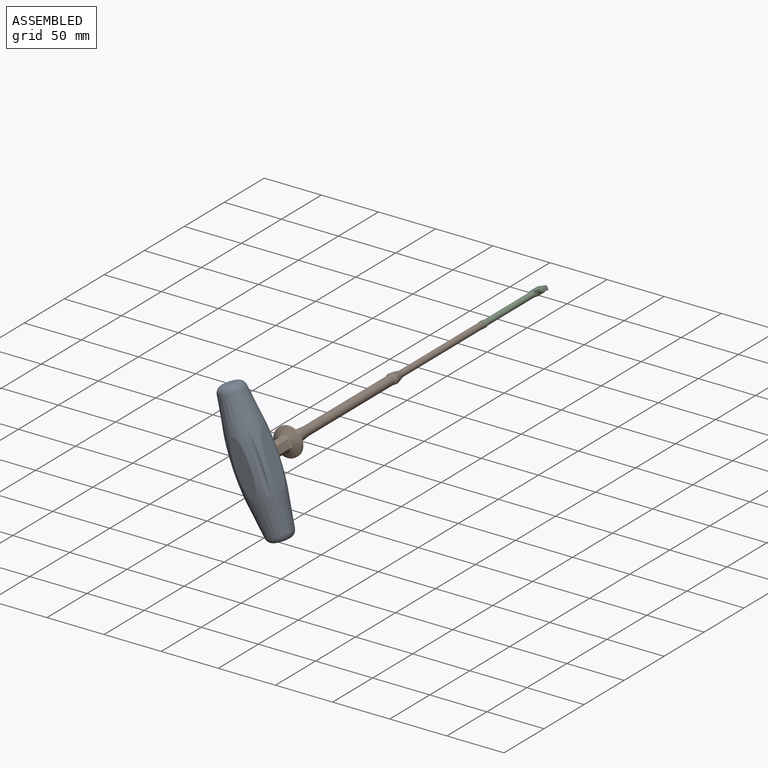
[diagram: assembled view]
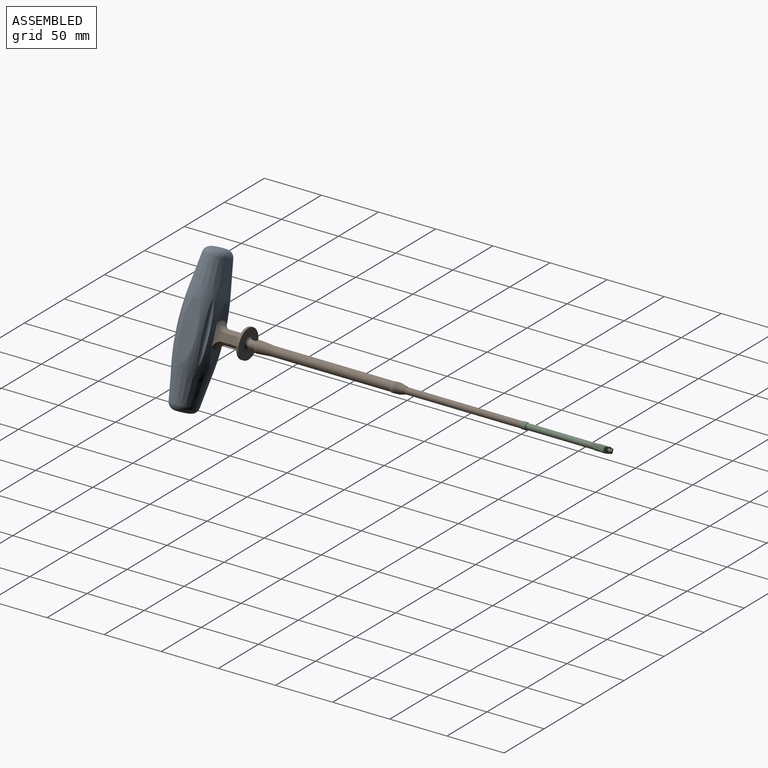
[diagram: assembled view, second angle]
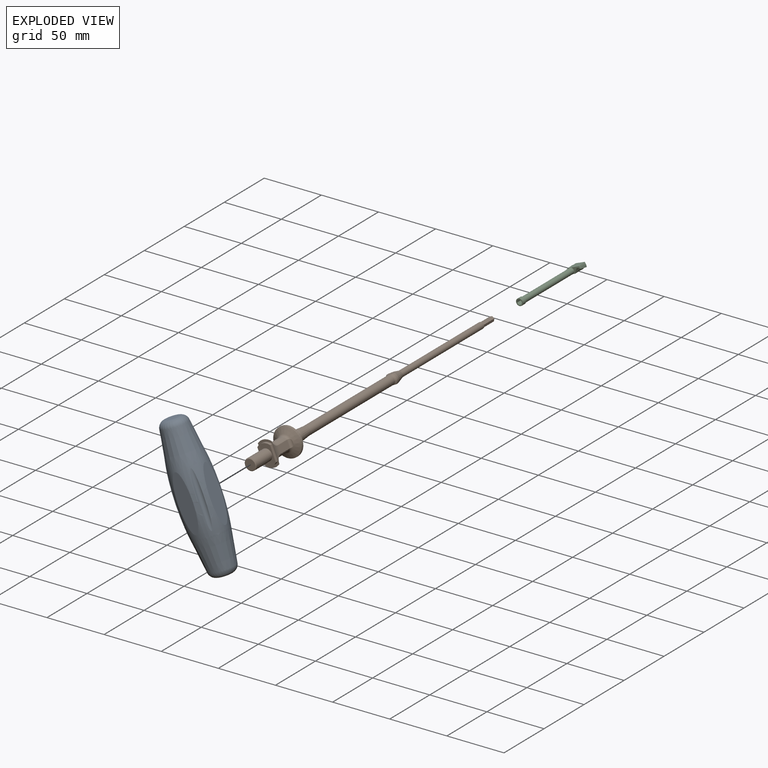
[diagram: exploded view]
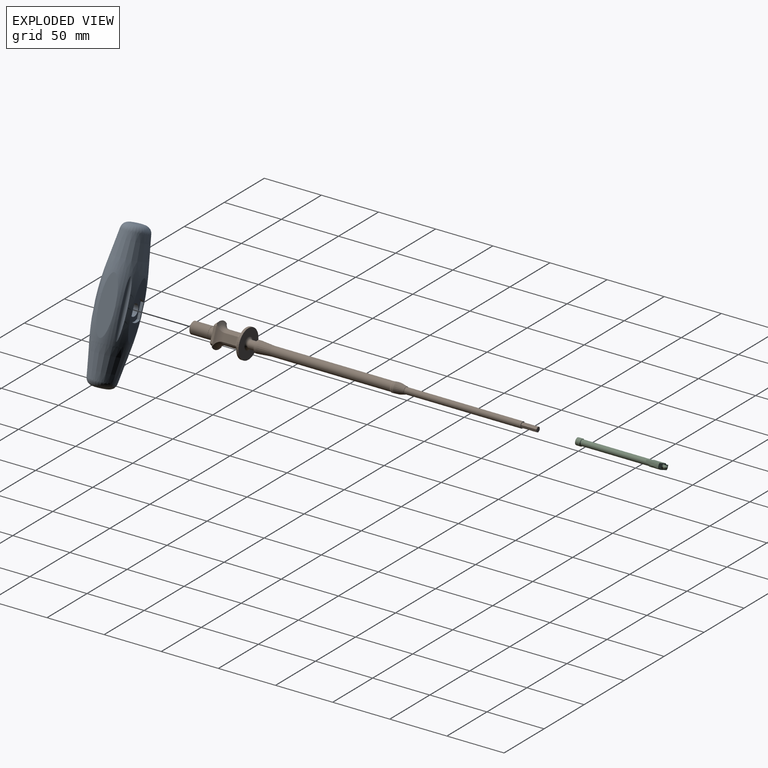
[diagram: exploded view, second angle]
ASSEMBLY  parts=3 mates=3
PART A: 25 faces, bbox 35x35x121 mm
  f0: plane 48.53x14.18mm, normal (-1,0,0), area 338.1mm2, adj f1,f15,f16,f17,f18
  f1: revolved ~57.74x35mm, area 3072.3mm2, adj f0,f2,f3,f8,f9,f10,f11,f12
  f2: cone r=15.37mm half-angle=8.4deg, axis (0,0,1), area 2230mm2, adj f1,f7
  f3: cone r=15.37mm half-angle=8.4deg, axis (0,0,-1), area 2230mm2, adj f1,f4
  f4: torus R=5.5mm, axis (0,0,-1), area 517mm2, adj f3,f5
  f5: plane 11x11mm, normal (0,0,1), area 95mm2, adj f4
  f6: plane 11x11mm, normal (0,0,-1), area 95mm2, adj f7
  f7: torus R=5.5mm, axis (0,0,-1), area 517mm2, adj f2,f6
  f8: plane 48.53x14.18mm, normal (1,0,0), area 537.4mm2, adj f1
  f9: plane 48.53x14.18mm, normal (0,-1,0), area 539.1mm2, adj f1
  f10: plane 48.53x14.18mm, normal (0,1,0), area 539.1mm2, adj f1
  f11: cylinder r=3mm len=48.57mm, axis (0,0,-1), area 218.5mm2, adj f1
  f12: cylinder r=3mm len=48.54mm, axis (0,0,-1), area 216.3mm2, adj f1
  f13: cylinder r=3mm len=48.56mm, axis (0,0,-1), area 221.5mm2, adj f1
  f14: cylinder r=3mm len=48.59mm, axis (0,0,-1), area 220.2mm2, adj f1
  f15: plane 13.18x2.5mm, normal (0,1,0), area 33mm2, adj f0,f16,f18,f19
  f16: cylinder r=8.98mm len=12.1mm, axis (-1,0,0), area 33.2mm2, adj f0,f15,f17,f19
  f17: plane 13.36x2.5mm, normal (0,-1,0), area 33.4mm2, adj f0,f16,f18,f19
  f18: cylinder r=8.98mm len=12.1mm, axis (-1,0,0), area 33.2mm2, adj f0,f15,f17,f19
  f19: plane 17.96x12.1mm, normal (-1,0,0), area 121mm2, adj f15,f16,f17,f18,f20
  f20: cylinder r=5mm len=10mm, axis (-1,0,0), area 125.7mm2, adj f19,f21
  f21: plane 10.25x10.25mm, normal (1,0,0), area 4mm2, adj f20,f22
  f22: cylinder r=5.12mm len=16mm, axis (-1,0,0), area 515.2mm2, adj f21,f23
  f23: cone r=4.5mm half-angle=51.3deg, axis (-1,0,0), area 24.2mm2, adj f22,f24
  f24: plane 9x9mm, normal (-1,0,0), area 63.6mm2, adj f23
PART B: 52 faces, bbox 30.3x26.3x303.4 mm
  f0: torus R=9mm, axis (0,0,1), area 52mm2, adj f8,f26,f39,f42
  f1: cylinder r=6mm len=11mm, axis (0,0,1), area 130mm2, adj f7,f9,f35,f40
  f2: torus R=13.4mm, axis (0,0,1), area 112.5mm2, adj f8,f10,f38,f43
  f3: plane 13.19x4.83mm, normal (0,0,1), area 28.7mm2, adj f4,f9,f36,f38,f43,f44
  f4: cylinder r=8.98mm len=12.02mm, axis (0,0,1), area 32.9mm2, adj f3,f6,f37,f41
  f5: cylinder r=8.98mm len=12.02mm, axis (0,0,1), area 32.9mm2, adj f6,f10,f37,f41
  f6: plane 17.96x12.02mm, normal (0,0,1), area 119.9mm2, adj f4,f5,f27,f37,f41
  f7: torus R=9mm, axis (0,0,1), area 52mm2, adj f1,f26,f39,f42
  f8: cylinder r=6mm len=11mm, axis (0,0,1), area 130mm2, adj f0,f2,f35,f40
  f9: torus R=13.4mm, axis (0,0,1), area 112.5mm2, adj f1,f3,f38,f43
  f10: plane 13.19x4.83mm, normal (0,0,1), area 28.7mm2, adj f2,f5,f36,f38,f43,f44
  f11: cone r=5mm half-angle=14deg, axis (0,0,1), area 178mm2, adj f12,f13,f17,f33,f34
  f12: cylinder r=5mm len=8mm, axis (0,0,1), area 18.5mm2, adj f11,f15,f33,f34
  f13: cylinder r=5mm len=8mm, axis (0,0,1), area 18.5mm2, adj f11,f14,f33,f34
  f14: cone r=4mm half-angle=33.7deg, axis (0,0,-1), area 20.1mm2, adj f13,f18,f33,f34
  f15: cone r=4mm half-angle=33.7deg, axis (0,0,-1), area 20.1mm2, adj f12,f18,f33,f34
  f16: cylinder r=2.7mm len=102mm, axis (0,0,1), area 1730.4mm2, adj f17,f32
  f17: plane 6x6mm, normal (0,0,-1), area 5.4mm2, adj f11,f16
  f18: cylinder r=4mm len=105mm, axis (0,0,1), area 2638.9mm2, adj f14,f15,f19
  f19: cone r=4mm half-angle=5deg, axis (0,0,1), area 326.4mm2, adj f18,f20
  f20: cylinder r=5mm len=10mm, axis (0,0,1), area 62.8mm2, adj f19,f21
  f21: plane 10x10mm, normal (0,0,1), area 40.1mm2, adj f20,f22
  f22: cylinder r=3.5mm len=7mm, axis (0,0,1), area 131.9mm2, adj f21,f23
  f23: torus R=5.5mm, axis (0,0,1), area 83.4mm2, adj f22,f24
  f24: plane 25x25mm, normal (0,0,-1), area 395.8mm2, adj f23,f25
  f25: cylinder r=12.5mm len=25mm, axis (0,0,1), area 157.1mm2, adj f24,f26
  f26: cone r=7.46mm half-angle=59.2deg, axis (0,0,-1), area 367.6mm2, adj f0,f7,f25
  f27: cylinder r=5mm len=10mm, axis (0,0,1), area 125.7mm2, adj f6,f28
  f28: plane 10.25x10.25mm, normal (0,0,-1), area 4mm2, adj f27,f29
  f29: cylinder r=5.12mm len=16mm, axis (0,0,1), area 515.2mm2, adj f28,f30
  f30: cone r=4.5mm half-angle=51.3deg, axis (0,0,-1), area 24.2mm2, adj f29,f31
  f31: plane 9x9mm, normal (0,0,1), area 63.6mm2, adj f30
  f32: plane 5.4x5.4mm, normal (0,0,-1), area 9.1mm2, adj f16,f45,f46,f47,f48,f49,f50
  f33: plane 8.82x7.32mm, normal (1,0,0), area 33.5mm2, adj f11,f12,f13,f14,f15
  f34: plane 8.38x6.88mm, normal (-1,0,0), area 33.5mm2, adj f11,f12,f13,f14,f15
  f35: plane 11x6.63mm, normal (0,1,0), area 73mm2, adj f1,f8,f38,f39
  f36: plane 13.35x0.5mm, normal (0,0,1), area 6.4mm2, adj f3,f10,f37,f38
  f37: plane 13.35x2.5mm, normal (0,1,0), area 33.3mm2, adj f4,f5,f6,f36
  f38: cylinder r=17mm len=17.74mm, axis (-1,0,0), area 70.1mm2, adj f2,f3,f9,f10,f35,f36
  f39: cylinder r=2.58mm len=6.63mm, axis (-1,0,0), area 13.1mm2, adj f0,f7,f35
  f40: plane 11x6.63mm, normal (0,-1,0), area 73mm2, adj f1,f8,f42,f43
  f41: plane 13.35x2.5mm, normal (0,-1,0), area 33.3mm2, adj f4,f5,f6,f44
  f42: cylinder r=2.58mm len=6.63mm, axis (-1,0,0), area 13.1mm2, adj f0,f7,f40
  f43: cylinder r=17mm len=17.74mm, axis (-1,0,0), area 70.1mm2, adj f2,f3,f9,f10,f40,f44
  f44: plane 13.35x0.5mm, normal (0,0,1), area 6.4mm2, adj f3,f10,f41,f43
  f45: plane 13.5x2mm, normal (0.5,-0.87,0), area 31.1mm2, adj f32,f46,f50,f51
  f46: plane 13.5x2mm, normal (-0.5,-0.87,0), area 31.1mm2, adj f32,f45,f47,f51
  f47: plane 13.5x2.31mm, normal (-1,0,0), area 31.1mm2, adj f32,f46,f48,f51
  f48: plane 13.5x2mm, normal (-0.5,0.87,0), area 31.1mm2, adj f32,f47,f49,f51
  f49: plane 13.5x2mm, normal (0.5,0.87,0), area 31.1mm2, adj f32,f48,f50,f51
  f50: plane 13.5x2.31mm, normal (1,0,0), area 31.1mm2, adj f32,f45,f49,f51
  f51: plane 4.61x4mm, normal (0,0,-1), area 13.8mm2, adj f45,f46,f47,f48,f49,f50
PART C: 48 faces, bbox 17.3x8.3x78.9 mm
  f0: plane 6x6mm, normal (0,0,-1), area 14.2mm2, adj f1,f2,f3,f4,f5,f6,f7,f8
  f1: plane 13.5x0.63mm, normal (-0.87,0.5,0), area 9.9mm2, adj f0,f12,f15,f47
  f2: plane 13.5x0.63mm, normal (-0.87,0.5,0), area 9.9mm2, adj f0,f3,f14,f47
  f3: plane 13.5x0.73mm, normal (0,1,0), area 9.9mm2, adj f0,f2,f14,f47
  f4: plane 13.5x0.73mm, normal (0,1,0), area 9.9mm2, adj f0,f5,f13,f47
  f5: plane 13.5x0.63mm, normal (0.87,0.5,0), area 9.9mm2, adj f0,f4,f13,f47
  f6: plane 13.5x0.63mm, normal (0.87,0.5,0), area 9.9mm2, adj f0,f7,f45,f47
  f7: plane 13.5x0.63mm, normal (0.87,-0.5,0), area 9.9mm2, adj f0,f6,f45,f47
  f8: plane 13.5x0.63mm, normal (0.87,-0.5,0), area 9.9mm2, adj f0,f9,f17,f47
  f9: plane 13.5x0.73mm, normal (0,-1,0), area 9.9mm2, adj f0,f8,f17,f47
  f10: plane 13.5x0.73mm, normal (0,-1,0), area 9.9mm2, adj f0,f11,f16,f47
  f11: plane 13.5x0.63mm, normal (-0.87,-0.5,0), area 9.9mm2, adj f0,f10,f16,f47
  f12: plane 13.5x0.63mm, normal (-0.87,-0.5,0), area 9.9mm2, adj f0,f1,f15,f47
  f13: plane 1.1x0.63mm, normal (0,0,-1), area 0.1mm2, adj f4,f5,f47
  f14: plane 1.1x0.63mm, normal (0,0,-1), area 0.1mm2, adj f2,f3,f47
  f15: plane 1.27x0.37mm, normal (0,0,-1), area 0.1mm2, adj f1,f12,f47
  f16: plane 1.1x0.63mm, normal (0,0,-1), area 0.1mm2, adj f10,f11,f47
  f17: plane 1.1x0.63mm, normal (0,0,-1), area 0.1mm2, adj f8,f9,f47
  f18: cylinder r=4.75mm len=1.85mm, axis (0,0,-1), area 0.2mm2, adj f21,f26,f36,f40
  f19: cylinder r=4.75mm len=1.85mm, axis (0,0,-1), area 0.2mm2, adj f20,f25,f35,f44
  f20: plane 4.48x2.08mm, normal (0,0,-1), area 6mm2, adj f19,f23,f35,f42,f43,f44
  f21: plane 4.48x2.08mm, normal (0,0,-1), area 6mm2, adj f18,f22,f36,f38,f39,f40
  f22: cone r=8.5mm half-angle=11.3deg, axis (0,0,-1), area 32.7mm2, adj f21,f24,f36,f38,f39
  f23: cone r=8.5mm half-angle=11.3deg, axis (0,0,-1), area 32.7mm2, adj f20,f24,f35,f42,f43
  f24: plane 13.02x5.02mm, normal (0,0,1), area 44.3mm2, adj f22,f23,f27,f35,f36,f37,f40,f41
  f25: plane 5.01x4.71mm, normal (0,0,-1), area 9.6mm2, adj f19,f34,f35,f36,f41,f44
  f26: plane 5.01x4.71mm, normal (0,0,-1), area 9.6mm2, adj f18,f34,f35,f36,f37,f40
  f27: torus R=2.31mm, axis (0,0,-1), area 16.9mm2, adj f24,f28
  f28: revolved ~2.85x2.85mm, area 13.4mm2, adj f27,f29
  f29: cylinder r=1mm len=2mm, axis (0,0,-1), area 1.3mm2, adj f28,f30
  f30: cone r=1mm half-angle=42.3deg, axis (0,0,-1), area 3.5mm2, adj f29,f31
  f31: plane 1x1mm, normal (0,0,1), area 0.8mm2, adj f30
  f32: cylinder r=3mm len=6mm, axis (0,0,-1), area 75.4mm2, adj f0,f33
  f33: cone r=3mm half-angle=45deg, axis (0,0,-1), area 12.2mm2, adj f32,f34
  f34: cylinder r=2.5mm len=60.4mm, axis (0,0,-1), area 948.8mm2, adj f25,f26,f33
  f35: plane 10.82x10.3mm, normal (0,-1,0), area 95.1mm2, adj f19,f20,f23,f24,f25,f26,f37
  f36: plane 10.82x10.3mm, normal (0,1,0), area 95.1mm2, adj f18,f21,f22,f24,f25,f26,f41
  f37: bspline ~16.67x5.59mm, area 27.7mm2, adj f24,f26,f35,f40
  f38: bspline ~16.67x6.05mm, area 9.2mm2, adj f21,f22,f39
  f39: bspline ~16.67x4.58mm, area 2.4mm2, adj f21,f22,f38,f40
  f40: bspline ~16.67x4.42mm, area 22.9mm2, adj f18,f21,f24,f26,f37,f39
  f41: bspline ~16.67x5.59mm, area 27.7mm2, adj f24,f25,f36,f44
  f42: bspline ~16.67x6.05mm, area 9.2mm2, adj f20,f23,f43
  f43: bspline ~16.67x4.58mm, area 2.4mm2, adj f20,f23,f42,f44
  f44: bspline ~16.67x4.42mm, area 22.9mm2, adj f19,f20,f24,f25,f41,f43
  f45: plane 1.27x0.37mm, normal (0,0,-1), area 0.1mm2, adj f6,f7,f47
  f46: cone r=0mm half-angle=60deg, axis (0,0,-1), area 15.2mm2, adj f47
  f47: cylinder r=2.05mm len=15.5mm, axis (0,0,-1), area 95.5mm2, adj f0,f1,f2,f3,f4,f5,f6,f7
PLACE A rot(axis=(0.19,-0.19,-0.96),92.1deg) t=(0,-360.33,0)mm
PLACE B rot(axis=(0.73,0.49,-0.49),108.1deg) t=(0,-78.75,0)mm
PLACE C rot(axis=(-0.14,0.7,0.7),164.3deg) t=(0,-78.75,0)mm
MATE slider B.f0 <-> C.f18  axis (0,1,0) through (0,-65.25,0)mm
MATE fastened B.f0 <-> A.f20  axis (0,-1,0) through (0,-367.33,0)mm
MATE parallel C.f0 <-> B.f0  axis (0,-1,0) through (2.14,-78.75,0.88)mm
